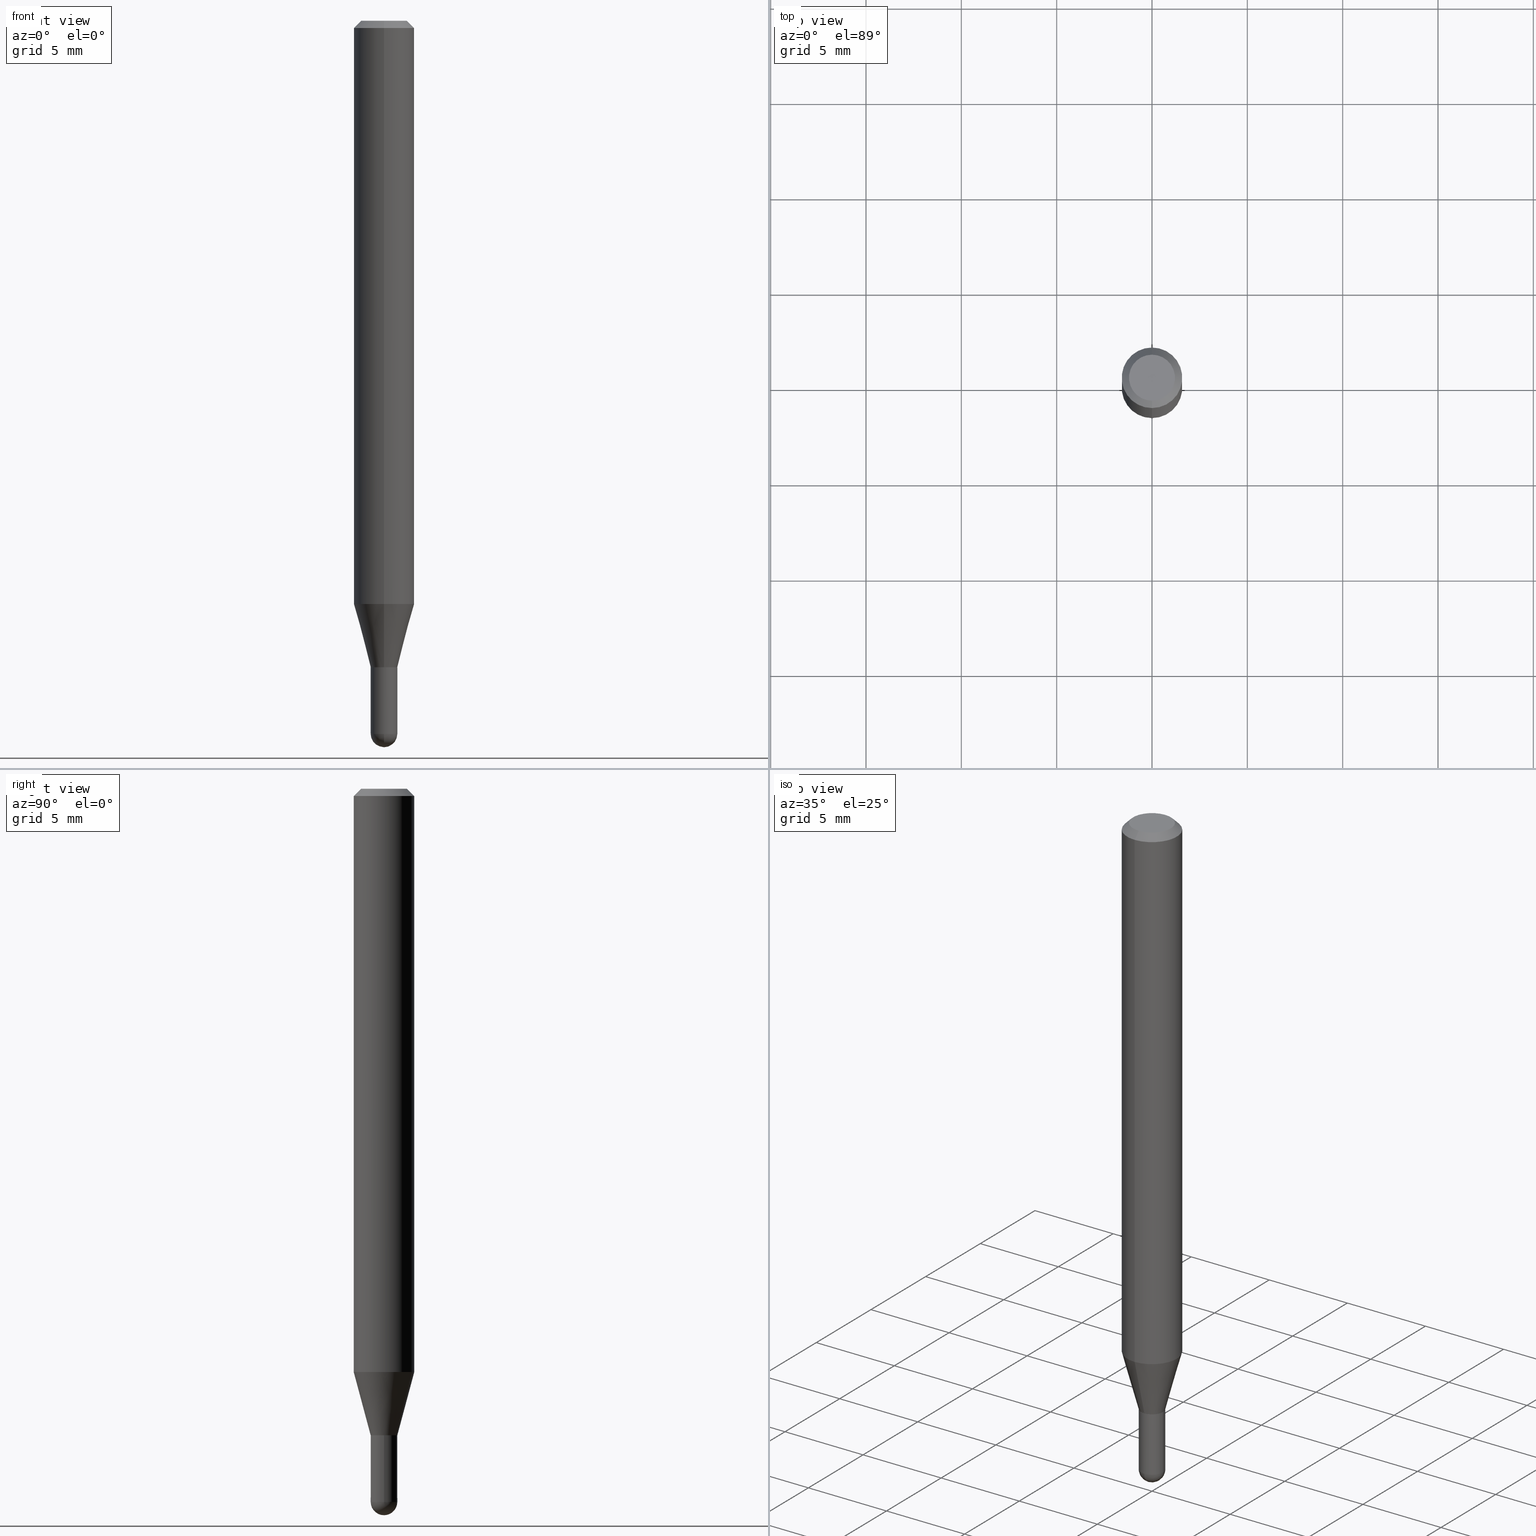
[diagram: canonical four-view strip — front | top / right | iso, engineering-drawing reading convention]
A machine part, canonical four-view strip (front | top / right | iso — engineering-drawing reading convention). The complete STEP part file that produces these views, byte-faithful:
ISO-10303-21;
HEADER;
FILE_DESCRIPTION (( 'STEP AP203' ),
    '1' );
FILE_NAME ('01478.STEP',
    '2024-03-07T21:27:34',
    ( '' ),
    ( '' ),
    'SwSTEP 2.0',
    'SolidWorks 2023',
    '' );
FILE_SCHEMA (( 'CONFIG_CONTROL_DESIGN' ));
ENDSEC;

DATA;
#1 = DIRECTION ( 'NONE',  ( -2.445481383962467149E-29, 3.491463326750125322E-15, 1.000000000000000000 ) ) ;
#2 = ORIENTED_EDGE ( 'NONE', *, *, #430, .F. ) ;
#3 = DIRECTION ( 'NONE',  ( -2.445481383962467429E-29, 3.491463326750125716E-15, 1.000000000000000000 ) ) ;
#4 = ORIENTED_EDGE ( 'NONE', *, *, #189, .T. ) ;
#5 = LOCAL_TIME ( 16, 27, 34.00000000000000000, #88 ) ;
#6 = FACE_OUTER_BOUND ( 'NONE', #467, .T. ) ;
#7 = VERTEX_POINT ( 'NONE', #301 ) ;
#8 = EDGE_CURVE ( 'NONE', #7, #60, #381, .T. ) ;
#9 = DIRECTION ( 'NONE',  ( -2.445481383962467149E-29, 3.491463326750125322E-15, 1.000000000000000000 ) ) ;
#10 = ORIENTED_EDGE ( 'NONE', *, *, #253, .F. ) ;
#11 = DIRECTION ( 'NONE',  ( 0.000000000000000000, 0.000000000000000000, 1.000000000000000000 ) ) ;
#12 = PLANE ( 'NONE',  #295 ) ;
#13 = APPROVAL_PERSON_ORGANIZATION ( #129, #222, #53 ) ;
#14 = DIRECTION ( 'NONE',  ( 1.000000000000000000, 0.000000000000000000, 0.000000000000000000 ) ) ;
#15 = ADVANCED_FACE ( 'NONE', ( #367 ), #12, .F. ) ;
#16 = DIRECTION ( 'NONE',  ( -1.000000000000000000, 6.982962677686265922E-15, -4.876176775795935793E-29 ) ) ;
#17 = PERSON_AND_ORGANIZATION_ROLE ( 'creator' ) ;
#18 = DATE_TIME_ROLE ( 'classification_date' ) ;
#19 = CLOSED_SHELL ( 'NONE', ( #29, #325, #15, #177, #206 ) ) ;
#20 = AXIS2_PLACEMENT_3D ( 'NONE', #505, #384, #418 ) ;
#21 = LOCAL_TIME ( 16, 27, 34.00000000000000000, #443 ) ;
#22 = CARTESIAN_POINT ( 'NONE',  ( 4.440892098500922971E-16, 0.06249999999999995143, -0.01500000000000022669 ) ) ;
#23 = EDGE_CURVE ( 'NONE', #240, #385, #169, .T. ) ;
#24 = CARTESIAN_POINT ( 'NONE',  ( -0.02750000000000000708, 1.953992523340276014E-16, -1.352707149820099356E-30 ) ) ;
#25 = APPROVAL ( #488, 'UNSPECIFIED' ) ;
#26 = FACE_OUTER_BOUND ( 'NONE', #479, .T. ) ;
#27 = CIRCLE ( 'NONE', #303, 0.02750000000000000708 ) ;
#28 = DIRECTION ( 'NONE',  ( -2.445481383962467429E-29, 3.491463326750125716E-15, 1.000000000000000000 ) ) ;
#29 = ADVANCED_FACE ( 'NONE', ( #403 ), #373, .T. ) ;
#30 =( CONVERSION_BASED_UNIT ( 'INCH', #225 ) LENGTH_UNIT ( ) NAMED_UNIT ( #462 ) );
#31 = PLANE ( 'NONE',  #66 ) ;
#32 =( NAMED_UNIT ( * ) SI_UNIT ( $, .STERADIAN. ) SOLID_ANGLE_UNIT ( ) );
#33 = CARTESIAN_POINT ( 'NONE',  ( 1.953992523340595996E-16, 0.02749999999999525740, -1.335000000000000409 ) ) ;
#34 = ORIENTED_EDGE ( 'NONE', *, *, #23, .T. ) ;
#35 = CARTESIAN_POINT ( 'NONE',  ( 2.945284520502991775E-29, -4.205042392724609361E-15, -1.204378221735093346 ) ) ;
#36 = CONICAL_SURFACE ( 'NONE', #20, 0.06250000000000000000, 0.7853981633974483900 ) ;
#37 = AXIS2_PLACEMENT_3D ( 'NONE', #294, #168, #249 ) ;
#38 = DIRECTION ( 'NONE',  ( 1.000000000000000000, -6.982962677686277755E-15, 0.000000000000000000 ) ) ;
#39 = EDGE_LOOP ( 'NONE', ( #41, #324 ) ) ;
#40 = DIRECTION ( 'NONE',  ( -2.445481383962467149E-29, 3.491463326750125322E-15, 1.000000000000000000 ) ) ;
#41 = ORIENTED_EDGE ( 'NONE', *, *, #230, .T. ) ;
#42 = DIRECTION ( 'NONE',  ( 1.000000000000000000, -6.982962677686277755E-15, 0.000000000000000000 ) ) ;
#43 = VERTEX_POINT ( 'NONE', #137 ) ;
#44 = VECTOR ( 'NONE', #287, 39.37007874015748143 ) ;
#45 = AXIS2_PLACEMENT_3D ( 'NONE', #257, #406, #63 ) ;
#46 = CYLINDRICAL_SURFACE ( 'NONE', #493, 0.06250000000000000000 ) ;
#47 = ORIENTED_EDGE ( 'NONE', *, *, #80, .T. ) ;
#48 = CC_DESIGN_PERSON_AND_ORGANIZATION_ASSIGNMENT ( #171, #17, ( #193 ) ) ;
#49 = ORIENTED_EDGE ( 'NONE', *, *, #424, .F. ) ;
#50 = PERSON_AND_ORGANIZATION ( #322, #101 ) ;
#51 = EDGE_CURVE ( 'NONE', #308, #398, #153, .T. ) ;
#52 = AXIS2_PLACEMENT_3D ( 'NONE', #57, #211, #370 ) ;
#53 = APPROVAL_ROLE ( '' ) ;
#54 = APPROVAL_DATE_TIME ( #285, #25 ) ;
#55 = PLANE ( 'NONE',  #269 ) ;
#56 = PERSON_AND_ORGANIZATION_ROLE ( 'classification_officer' ) ;
#57 = CARTESIAN_POINT ( 'NONE',  ( 3.600952817107613706E-29, -5.141206271446532325E-15, -1.472500000000000142 ) ) ;
#58 = EDGE_CURVE ( 'NONE', #111, #398, #27, .T. ) ;
#59 = VECTOR ( 'NONE', #3, 39.37007874015748143 ) ;
#60 = VERTEX_POINT ( 'NONE', #411 ) ;
#61 = DIRECTION ( 'NONE',  ( -6.982962677686266711E-15, -1.000000000000000000, 3.491463326750125716E-15 ) ) ;
#62 = ADVANCED_FACE ( 'NONE', ( #258 ), #55, .F. ) ;
#63 = DIRECTION ( 'NONE',  ( -6.982962677686265922E-15, -1.000000000000000000, 0.000000000000000000 ) ) ;
#64 = FACE_OUTER_BOUND ( 'NONE', #127, .T. ) ;
#65 = ORIENTED_EDGE ( 'NONE', *, *, #414, .T. ) ;
#66 = AXIS2_PLACEMENT_3D ( 'NONE', #465, #383, #103 ) ;
#67 = LOCAL_TIME ( 16, 27, 34.00000000000000000, #218 ) ;
#68 = CYLINDRICAL_SURFACE ( 'NONE', #498, 0.02750000000000000708 ) ;
#69 = DIRECTION ( 'NONE',  ( -6.982962677686265922E-15, -1.000000000000000000, 3.491463326750125322E-15 ) ) ;
#70 = ORIENTED_EDGE ( 'NONE', *, *, #248, .T. ) ;
#71 = LINE ( 'NONE', #358, #59 ) ;
#72 = PRODUCT_DEFINITION ( 'UNKNOWN', '', #193, #470 ) ;
#73 = AXIS2_PLACEMENT_3D ( 'NONE', #311, #108, #302 ) ;
#74 = DIRECTION ( 'NONE',  ( -2.445481383962467149E-29, 3.491463326750125322E-15, 1.000000000000000000 ) ) ;
#75 = VECTOR ( 'NONE', #102, 39.37007874015748854 ) ;
#76 = ORIENTED_EDGE ( 'NONE', *, *, #407, .F. ) ;
#77 = DIRECTION ( 'NONE',  ( 2.445481383962467149E-29, -3.491463326750125322E-15, -1.000000000000000000 ) ) ;
#78 = ORIENTED_EDGE ( 'NONE', *, *, #51, .F. ) ;
#79 = PRODUCT_DEFINITION_SHAPE ( 'NONE', 'NONE',  #72 ) ;
#80 = EDGE_CURVE ( 'NONE', #308, #165, #100, .T. ) ;
#81 = DIRECTION ( 'NONE',  ( -2.445481383962467149E-29, 3.491463326750125322E-15, 1.000000000000000000 ) ) ;
#82 = ORIENTED_EDGE ( 'NONE', *, *, #306, .T. ) ;
#83 = CARTESIAN_POINT ( 'NONE',  ( 0.000000000000000000, 0.000000000000000000, 0.000000000000000000 ) ) ;
#84 = VERTEX_POINT ( 'NONE', #229 ) ;
#85 = AXIS2_PLACEMENT_3D ( 'NONE', #122, #1, #389 ) ;
#86 = ORIENTED_EDGE ( 'NONE', *, *, #360, .F. ) ;
#87 = EDGE_CURVE ( 'NONE', #43, #460, #320, .T. ) ;
#88 = COORDINATED_UNIVERSAL_TIME_OFFSET ( 5, 0, .BEHIND. ) ;
#89 = CC_DESIGN_DATE_AND_TIME_ASSIGNMENT ( #125, #18, ( #246 ) ) ;
#90 = SHAPE_DEFINITION_REPRESENTATION ( #79, #404 ) ;
#91 = DIRECTION ( 'NONE',  ( -6.982962677686265922E-15, -1.000000000000000000, 3.491463326750125322E-15 ) ) ;
#92 = ORIENTED_EDGE ( 'NONE', *, *, #236, .F. ) ;
#93 = CIRCLE ( 'NONE', #185, 0.04749999999999999362 ) ;
#94 = PERSON_AND_ORGANIZATION ( #322, #101 ) ;
#95 = DIRECTION ( 'NONE',  ( -6.982962677686265922E-15, -1.000000000000000000, 3.483106191921935554E-15 ) ) ;
#96 = DIRECTION ( 'NONE',  ( 1.000000000000000000, -6.982962677686277755E-15, 0.000000000000000000 ) ) ;
#97 = MECHANICAL_CONTEXT ( 'NONE', #118, 'mechanical' ) ;
#98 = DIRECTION ( 'NONE',  ( 5.024295867788190974E-15, 0.7071067811865681119, 0.7071067811865270336 ) ) ;
#99 = ADVANCED_FACE ( 'NONE', ( #26 ), #466, .T. ) ;
#100 = CIRCLE ( 'NONE', #304, 0.02750000000000010075 ) ;
#101 = ORGANIZATION ( 'UNSPECIFIED', 'UNSPECIFIED', '' ) ;
#102 = DIRECTION ( 'NONE',  ( 1.839019923739647647E-15, 0.2588190451025316197, 0.9659258262890653146 ) ) ;
#103 = DIRECTION ( 'NONE',  ( -6.982962677686265922E-15, -1.000000000000000000, 3.491463326750125716E-15 ) ) ;
#104 = ORIENTED_EDGE ( 'NONE', *, *, #182, .T. ) ;
#105 = DIRECTION ( 'NONE',  ( -2.445481383962467149E-29, 3.491463326750125322E-15, 1.000000000000000000 ) ) ;
#106 = AXIS2_PLACEMENT_3D ( 'NONE', #305, #344, #69 ) ;
#107 =( NAMED_UNIT ( * ) PLANE_ANGLE_UNIT ( ) SI_UNIT ( $, .RADIAN. ) );
#108 = DIRECTION ( 'NONE',  ( -2.445481383962467149E-29, 3.491463326750125322E-15, 1.000000000000000000 ) ) ;
#109 = DIRECTION ( 'NONE',  ( -2.445481383962467149E-29, 3.491463326750125322E-15, 1.000000000000000000 ) ) ;
#110 = CARTESIAN_POINT ( 'NONE',  ( 0.02750000000000000708, -1.920314736363723691E-16, 1.340948613343882588E-30 ) ) ;
#111 = VERTEX_POINT ( 'NONE', #500 ) ;
#112 = VECTOR ( 'NONE', #419, 39.37007874015748143 ) ;
#113 = CARTESIAN_POINT ( 'NONE',  ( -1.885399922974965256E-16, -0.02700000000000466263, -1.335000000000000187 ) ) ;
#114 = CIRCLE ( 'NONE', #186, 0.06250000000000000000 ) ;
#115 = ORIENTED_EDGE ( 'NONE', *, *, #230, .F. ) ;
#116 = ADVANCED_FACE ( 'NONE', ( #144 ), #455, .T. ) ;
#117 = CARTESIAN_POINT ( 'NONE',  ( 3.668222075943703298E-31, -5.237194990125190917E-17, -0.01500000000000000812 ) ) ;
#118 = APPLICATION_CONTEXT ( 'configuration controlled 3d designs of mechanical parts and assemblies' ) ;
#119 = ORIENTED_EDGE ( 'NONE', *, *, #253, .T. ) ;
#120 = CARTESIAN_POINT ( 'NONE',  ( 3.600952817107613706E-29, -5.141206271446532325E-15, -1.472500000000000142 ) ) ;
#121 = ORIENTED_EDGE ( 'NONE', *, *, #58, .T. ) ;
#122 = CARTESIAN_POINT ( 'NONE',  ( 3.264717647589894801E-29, -4.661103541211418295E-15, -1.335000000000000409 ) ) ;
#123 = EDGE_LOOP ( 'NONE', ( #181, #428, #463, #359 ) ) ;
#124 = AXIS2_PLACEMENT_3D ( 'NONE', #176, #334, #292 ) ;
#125 = DATE_AND_TIME ( #405, #67 ) ;
#126 = DIRECTION ( 'NONE',  ( -1.807323732225377077E-15, -0.2588190451025249028, 0.9659258262890670910 ) ) ;
#127 = EDGE_LOOP ( 'NONE', ( #78, #47, #434, #92 ) ) ;
#128 = ADVANCED_FACE ( 'NONE', ( #504 ), #31, .F. ) ;
#129 = PERSON_AND_ORGANIZATION ( #322, #101 ) ;
#130 = CARTESIAN_POINT ( 'NONE',  ( 0.000000000000000000, 0.000000000000000000, 0.000000000000000000 ) ) ;
#131 = ORIENTED_EDGE ( 'NONE', *, *, #300, .T. ) ;
#132 = CALENDAR_DATE ( 2024, 7, 3 ) ;
#133 = CARTESIAN_POINT ( 'NONE',  ( 1.920314736364049589E-16, 0.02749999999999534067, -1.335000000000000187 ) ) ;
#134 = CIRCLE ( 'NONE', #437, 0.06250000000000000000 ) ;
#135 = LOCAL_TIME ( 16, 27, 34.00000000000000000, #450 ) ;
#136 = EDGE_CURVE ( 'NONE', #151, #385, #456, .T. ) ;
#137 = CARTESIAN_POINT ( 'NONE',  ( -3.773273898774340269E-16, -0.04749999999999999362, 1.569833328543813949E-16 ) ) ;
#138 = LINE ( 'NONE', #442, #202 ) ;
#139 = VERTEX_POINT ( 'NONE', #184 ) ;
#140 = DIRECTION ( 'NONE',  ( -2.445481383962467149E-29, 3.491463326750125322E-15, 1.000000000000000000 ) ) ;
#141 = ADVANCED_FACE ( 'NONE', ( #379 ), #190, .F. ) ;
#142 = VECTOR ( 'NONE', #232, 39.37007874015748143 ) ;
#143 = CC_DESIGN_APPROVAL ( #25, ( #246 ) ) ;
#144 = FACE_OUTER_BOUND ( 'NONE', #436, .T. ) ;
#145 = CC_DESIGN_PERSON_AND_ORGANIZATION_ASSIGNMENT ( #335, #163, ( #193 ) ) ;
#146 = ORIENTED_EDGE ( 'NONE', *, *, #80, .F. ) ;
#147 = CARTESIAN_POINT ( 'NONE',  ( 3.264700856257157760E-29, -4.661127587355599122E-15, -1.335000000000000187 ) ) ;
#148 = FACE_OUTER_BOUND ( 'NONE', #329, .T. ) ;
#149 = ORIENTED_EDGE ( 'NONE', *, *, #152, .T. ) ;
#150 = CARTESIAN_POINT ( 'NONE',  ( 0.000000000000000000, 0.000000000000000000, 0.000000000000000000 ) ) ;
#151 = VERTEX_POINT ( 'NONE', #266 ) ;
#152 = EDGE_CURVE ( 'NONE', #84, #319, #497, .T. ) ;
#153 = CIRCLE ( 'NONE', #339, 0.02750000000000010075 ) ;
#154 = DIRECTION ( 'NONE',  ( -2.445468806185136597E-29, 3.491481338843145583E-15, 1.000000000000000000 ) ) ;
#155 = CYLINDRICAL_SURFACE ( 'NONE', #420, 0.06250000000000000000 ) ;
#156 = ORIENTED_EDGE ( 'NONE', *, *, #481, .T. ) ;
#157 = CARTESIAN_POINT ( 'NONE',  ( 3.598601109812370247E-29, -5.144574050144187163E-15, -1.472500000000000142 ) ) ;
#158 = ORIENTED_EDGE ( 'NONE', *, *, #293, .F. ) ;
#159 = DIRECTION ( 'NONE',  ( 6.982962677686265922E-15, 1.000000000000000000, -3.483106191921935554E-15 ) ) ;
#160 = ORIENTED_EDGE ( 'NONE', *, *, #215, .T. ) ;
#161 = LINE ( 'NONE', #387, #369 ) ;
#162 = ORIENTED_EDGE ( 'NONE', *, *, #23, .F. ) ;
#163 = PERSON_AND_ORGANIZATION_ROLE ( 'design_supplier' ) ;
#164 = LINE ( 'NONE', #235, #275 ) ;
#165 = VERTEX_POINT ( 'NONE', #343 ) ;
#166 = APPROVAL_STATUS ( 'not_yet_approved' ) ;
#167 = ADVANCED_FACE ( 'NONE', ( #307 ), #36, .T. ) ;
#168 = DIRECTION ( 'NONE',  ( -2.445468806185136597E-29, 3.491481338843145583E-15, 1.000000000000000000 ) ) ;
#169 = LINE ( 'NONE', #179, #354 ) ;
#170 = CIRCLE ( 'NONE', #457, 0.02750000000000000708 ) ;
#171 = PERSON_AND_ORGANIZATION ( #322, #101 ) ;
#172 = CARTESIAN_POINT ( 'NONE',  ( 3.264717647589894801E-29, -4.661103541211418295E-15, -1.335000000000000409 ) ) ;
#173 = ORIENTED_EDGE ( 'NONE', *, *, #509, .F. ) ;
#174 = CALENDAR_DATE ( 2024, 7, 3 ) ;
#175 = CARTESIAN_POINT ( 'NONE',  ( -4.364351673553912750E-16, -0.06250000000000005551, -0.01499999999999979128 ) ) ;
#176 = CARTESIAN_POINT ( 'NONE',  ( 0.000000000000000000, 0.000000000000000000, 0.000000000000000000 ) ) ;
#177 = ADVANCED_FACE ( 'NONE', ( #64 ), #380, .T. ) ;
#178 = APPLICATION_CONTEXT ( 'configuration controlled 3d designs of mechanical parts and assemblies' ) ;
#179 = CARTESIAN_POINT ( 'NONE',  ( -1.885399922974965256E-16, -0.02700000000000466263, -1.335000000000000187 ) ) ;
#180 = AXIS2_PLACEMENT_3D ( 'NONE', #117, #81, #469 ) ;
#181 = ORIENTED_EDGE ( 'NONE', *, *, #87, .F. ) ;
#182 = EDGE_CURVE ( 'NONE', #460, #417, #187, .T. ) ;
#183 = DIRECTION ( 'NONE',  ( -6.982962677686266711E-15, -1.000000000000000000, 3.491463326750125716E-15 ) ) ;
#184 = CARTESIAN_POINT ( 'NONE',  ( 1.936228954946596434E-16, 0.02699999999999533676, -1.335000000000000187 ) ) ;
#185 = AXIS2_PLACEMENT_3D ( 'NONE', #265, #140, #61 ) ;
#186 = AXIS2_PLACEMENT_3D ( 'NONE', #291, #438, #95 ) ;
#187 = LINE ( 'NONE', #378, #112 ) ;
#188 = CARTESIAN_POINT ( 'NONE',  ( 3.264717647589894241E-29, -4.661103541211417506E-15, -1.335000000000000187 ) ) ;
#189 = EDGE_CURVE ( 'NONE', #317, #7, #351, .T. ) ;
#190 = CYLINDRICAL_SURFACE ( 'NONE', #106, 0.02749999999999992034 ) ;
#191 = ORIENTED_EDGE ( 'NONE', *, *, #136, .F. ) ;
#192 = CIRCLE ( 'NONE', #506, 0.02699999999999999969 ) ;
#193 = PRODUCT_DEFINITION_FORMATION_WITH_SPECIFIED_SOURCE ( 'ANY', '', #352, .NOT_KNOWN. ) ;
#194 = DIRECTION ( 'NONE',  ( -6.982962677686265922E-15, -1.000000000000000000, 3.491463326750125322E-15 ) ) ;
#195 = ADVANCED_FACE ( 'NONE', ( #148 ), #361, .T. ) ;
#196 = CARTESIAN_POINT ( 'NONE',  ( 0.02750000000000000014, -4.853159060991972403E-15, -1.335000000000000187 ) ) ;
#197 = ORIENTED_EDGE ( 'NONE', *, *, #248, .F. ) ;
#198 = CARTESIAN_POINT ( 'NONE',  ( 1.953992523340589093E-16, 0.02749999999999517067, -1.334500000000000242 ) ) ;
#199 = ORIENTED_EDGE ( 'NONE', *, *, #341, .F. ) ;
#200 = AXIS2_PLACEMENT_3D ( 'NONE', #427, #74, #355 ) ;
#201 = CARTESIAN_POINT ( 'NONE',  ( 1.953992523340638644E-16, 0.02749999999999491046, -1.472500000000000142 ) ) ;
#202 = VECTOR ( 'NONE', #98, 39.37007874015748143 ) ;
#203 = ORIENTED_EDGE ( 'NONE', *, *, #189, .F. ) ;
#204 = DIRECTION ( 'NONE',  ( -2.445481383962467149E-29, 3.491463326750125322E-15, 1.000000000000000000 ) ) ;
#205 = ORIENTED_EDGE ( 'NONE', *, *, #464, .F. ) ;
#206 = ADVANCED_FACE ( 'NONE', ( #268 ), #68, .T. ) ;
#207 = ORIENTED_EDGE ( 'NONE', *, *, #464, .T. ) ;
#208 = PERSON_AND_ORGANIZATION ( #322, #101 ) ;
#209 = UNCERTAINTY_MEASURE_WITH_UNIT (LENGTH_MEASURE( 1.000000000000000082E-05 ), #30, 'distance_accuracy_value', 'NONE');
#210 = CLOSED_SHELL ( 'NONE', ( #472, #503, #167, #267, #116, #99, #262, #345, #62, #128, #195, #141 ) ) ;
#211 = DIRECTION ( 'NONE',  ( -2.445468806185136597E-29, 3.491481338843145583E-15, 1.000000000000000000 ) ) ;
#212 = AXIS2_PLACEMENT_3D ( 'NONE', #120, #280, #38 ) ;
#213 = VECTOR ( 'NONE', #363, 39.37007874015748143 ) ;
#214 = APPROVAL_ROLE ( '' ) ;
#215 = EDGE_CURVE ( 'NONE', #240, #139, #192, .T. ) ;
#216 = CALENDAR_DATE ( 2024, 7, 3 ) ;
#217 = DIRECTION ( 'NONE',  ( 2.445481383962466869E-29, -3.491463326750125716E-15, -1.000000000000000000 ) ) ;
#218 = COORDINATED_UNIVERSAL_TIME_OFFSET ( 5, 0, .BEHIND. ) ;
#219 = CIRCLE ( 'NONE', #200, 0.02749999999999992381 ) ;
#220 = CIRCLE ( 'NONE', #180, 0.06250000000000000000 ) ;
#221 = DIRECTION ( 'NONE',  ( -6.982962677686265133E-15, -1.000000000000000000, 0.000000000000000000 ) ) ;
#222 = APPROVAL ( #480, 'UNSPECIFIED' ) ;
#223 = DIRECTION ( 'NONE',  ( -2.445481383962467149E-29, 3.491463326750125322E-15, 1.000000000000000000 ) ) ;
#224 = CARTESIAN_POINT ( 'NONE',  ( 2.166983890909381177E-46, -3.093846812486927280E-32, -8.861175166249556277E-18 ) ) ;
#225 = LENGTH_MEASURE_WITH_UNIT ( LENGTH_MEASURE( 0.02539999999999999897 ), #261 );
#226 = ORIENTED_EDGE ( 'NONE', *, *, #360, .T. ) ;
#227 = CIRCLE ( 'NONE', #212, 0.02750000000000000708 ) ;
#228 = APPROVAL_PERSON_ORGANIZATION ( #50, #496, #290 ) ;
#229 = CARTESIAN_POINT ( 'NONE',  ( -0.02750000000000000708, -4.705767677067038393E-15, -1.472500000000000142 ) ) ;
#230 = EDGE_CURVE ( 'NONE', #460, #43, #93, .T. ) ;
#231 = ORIENTED_EDGE ( 'NONE', *, *, #282, .T. ) ;
#232 = DIRECTION ( 'NONE',  ( -2.445468806185136877E-29, 3.491481338843145188E-15, 1.000000000000000000 ) ) ;
#233 = PRODUCT_RELATED_PRODUCT_CATEGORY ( 'detail', '', ( #352 ) ) ;
#234 = EDGE_LOOP ( 'NONE', ( #197, #474, #254, #231 ) ) ;
#235 = CARTESIAN_POINT ( 'NONE',  ( 1.953992523340269605E-16, 0.02749999999999992034, -9.601524148562816631E-17 ) ) ;
#236 = EDGE_CURVE ( 'NONE', #398, #84, #227, .T. ) ;
#237 = AXIS2_PLACEMENT_3D ( 'NONE', #461, #348, #501 ) ;
#238 = LOCAL_TIME ( 16, 27, 34.00000000000000000, #372 ) ;
#239 = LINE ( 'NONE', #110, #44 ) ;
#240 = VERTEX_POINT ( 'NONE', #113 ) ;
#241 = FACE_OUTER_BOUND ( 'NONE', #392, .T. ) ;
#242 = ORIENTED_EDGE ( 'NONE', *, *, #300, .F. ) ;
#243 = DIRECTION ( 'NONE',  ( -2.445468806185136597E-29, 3.491481338843145583E-15, 1.000000000000000000 ) ) ;
#244 = ORIENTED_EDGE ( 'NONE', *, *, #333, .T. ) ;
#245 = AXIS2_PLACEMENT_3D ( 'NONE', #365, #9, #482 ) ;
#246 = SECURITY_CLASSIFICATION ( '', '', #338 ) ;
#247 = VERTEX_POINT ( 'NONE', #196 ) ;
#248 = EDGE_CURVE ( 'NONE', #317, #279, #164, .T. ) ;
#249 = DIRECTION ( 'NONE',  ( 1.000000000000000000, -6.982962677686279332E-15, 0.000000000000000000 ) ) ;
#250 = ORIENTED_EDGE ( 'NONE', *, *, #424, .T. ) ;
#251 = CARTESIAN_POINT ( 'NONE',  ( 3.840629472727447874E-16, 0.04749999999999999362, -1.747056831868805136E-16 ) ) ;
#252 = DIRECTION ( 'NONE',  ( 1.000000000000000000, -7.105427357601001070E-15, 4.926315508542082329E-29 ) ) ;
#253 = EDGE_CURVE ( 'NONE', #60, #7, #134, .T. ) ;
#254 = ORIENTED_EDGE ( 'NONE', *, *, #136, .T. ) ;
#255 = CONICAL_SURFACE ( 'NONE', #321, 0.02699999999999999969, 0.7853981633974739252 ) ;
#256 = DATE_AND_TIME ( #441, #238 ) ;
#257 = CARTESIAN_POINT ( 'NONE',  ( 3.263494906897912380E-29, -4.659357809548043093E-15, -1.334500000000000242 ) ) ;
#258 = FACE_OUTER_BOUND ( 'NONE', #39, .T. ) ;
#259 = APPROVAL_DATE_TIME ( #298, #222 ) ;
#260 = DIRECTION ( 'NONE',  ( -1.000000000000000000, 6.982962677686265922E-15, -4.883557194083112340E-29 ) ) ;
#261 =( LENGTH_UNIT ( ) NAMED_UNIT ( * ) SI_UNIT ( $, .METRE. ) );
#262 = ADVANCED_FACE ( 'NONE', ( #241 ), #155, .T. ) ;
#263 = VECTOR ( 'NONE', #28, 39.37007874015748143 ) ;
#264 = CIRCLE ( 'NONE', #52, 0.02750000000000000708 ) ;
#265 = CARTESIAN_POINT ( 'NONE',  ( 2.166983890909381177E-46, -3.093846812486927280E-32, -8.861175166249556277E-18 ) ) ;
#266 = CARTESIAN_POINT ( 'NONE',  ( -1.920314736363391136E-16, -0.02750000000000457981, -1.335000000000000409 ) ) ;
#267 = ADVANCED_FACE ( 'NONE', ( #356 ), #46, .T. ) ;
#268 = FACE_OUTER_BOUND ( 'NONE', #353, .T. ) ;
#269 = AXIS2_PLACEMENT_3D ( 'NONE', #340, #217, #494 ) ;
#270 = DIRECTION ( 'NONE',  ( 1.000000000000000000, -6.982962677686279332E-15, 0.000000000000000000 ) ) ;
#271 = CARTESIAN_POINT ( 'NONE',  ( -1.920314736363717528E-16, -0.02749999999999992034, 9.601524148562816631E-17 ) ) ;
#272 = CARTESIAN_POINT ( 'NONE',  ( 3.264717647589894241E-29, -4.661103541211417506E-15, -1.335000000000000187 ) ) ;
#273 = CARTESIAN_POINT ( 'NONE',  ( 3.600952817107613706E-29, -5.141206271446532325E-15, -1.472500000000000142 ) ) ;
#274 = ORIENTED_EDGE ( 'NONE', *, *, #51, .T. ) ;
#275 = VECTOR ( 'NONE', #478, 39.37007874015748143 ) ;
#276 = CIRCLE ( 'NONE', #347, 0.02749999999999992034 ) ;
#277 = MANIFOLD_SOLID_BREP ( 'Body-Move/Copy2[2]', #210 ) ;
#278 = DIRECTION ( 'NONE',  ( -6.982962677686265922E-15, -1.000000000000000000, 0.000000000000000000 ) ) ;
#279 = VERTEX_POINT ( 'NONE', #198 ) ;
#280 = DIRECTION ( 'NONE',  ( -2.445468806185136597E-29, 3.491481338843145583E-15, 1.000000000000000000 ) ) ;
#281 = EDGE_LOOP ( 'NONE', ( #394, #70, #156, #191 ) ) ;
#282 = EDGE_CURVE ( 'NONE', #385, #279, #219, .T. ) ;
#283 = CARTESIAN_POINT ( 'NONE',  ( 3.197442310920758867E-16, 0.02749999999999525740, -1.335000000000000409 ) ) ;
#284 = ORIENTED_EDGE ( 'NONE', *, *, #407, .T. ) ;
#285 = DATE_AND_TIME ( #132, #135 ) ;
#286 = AXIS2_PLACEMENT_3D ( 'NONE', #468, #423, #350 ) ;
#287 = DIRECTION ( 'NONE',  ( -2.445468806185136877E-29, 3.491481338843145188E-15, 1.000000000000000000 ) ) ;
#288 = VECTOR ( 'NONE', #126, 39.37007874015748143 ) ;
#289 = ORIENTED_EDGE ( 'NONE', *, *, #375, .F. ) ;
#290 = APPROVAL_ROLE ( '' ) ;
#291 = CARTESIAN_POINT ( 'NONE',  ( 3.668222075943703298E-31, -5.237194990125190917E-17, -0.01500000000000000812 ) ) ;
#292 = DIRECTION ( 'NONE',  ( 1.000000000000000000, -6.982962677686265922E-15, 4.876176775795935232E-29 ) ) ;
#293 = EDGE_CURVE ( 'NONE', #111, #247, #239, .T. ) ;
#294 = CARTESIAN_POINT ( 'NONE',  ( 3.264700856257157760E-29, -4.661127587355599122E-15, -1.335000000000000187 ) ) ;
#295 = AXIS2_PLACEMENT_3D ( 'NONE', #133, #452, #16 ) ;
#296 = DIRECTION ( 'NONE',  ( 7.105427357601000281E-15, 1.000000000000000000, 0.000000000000000000 ) ) ;
#297 = CC_DESIGN_APPROVAL ( #222, ( #193 ) ) ;
#298 = DATE_AND_TIME ( #174, #21 ) ;
#299 = CARTESIAN_POINT ( 'NONE',  ( 3.598601109812370247E-29, -5.144574050144187163E-15, -1.472500000000000142 ) ) ;
#300 = EDGE_CURVE ( 'NONE', #139, #240, #395, .T. ) ;
#301 = CARTESIAN_POINT ( 'NONE',  ( 4.440892098500917054E-16, 0.06249999999999575340, -1.204378221735093790 ) ) ;
#302 = DIRECTION ( 'NONE',  ( -6.982962677686265922E-15, -1.000000000000000000, 0.000000000000000000 ) ) ;
#303 = AXIS2_PLACEMENT_3D ( 'NONE', #449, #401, #96 ) ;
#304 = AXIS2_PLACEMENT_3D ( 'NONE', #299, #260, #459 ) ;
#305 = CARTESIAN_POINT ( 'NONE',  ( 0.000000000000000000, 0.000000000000000000, 0.000000000000000000 ) ) ;
#306 = EDGE_CURVE ( 'NONE', #151, #317, #313, .T. ) ;
#307 = FACE_OUTER_BOUND ( 'NONE', #123, .T. ) ;
#308 = VERTEX_POINT ( 'NONE', #510 ) ;
#309 = CC_DESIGN_PERSON_AND_ORGANIZATION_ASSIGNMENT ( #94, #56, ( #246 ) ) ;
#310 = FACE_OUTER_BOUND ( 'NONE', #357, .T. ) ;
#311 = CARTESIAN_POINT ( 'NONE',  ( 3.264717647589894801E-29, -4.661103541211418295E-15, -1.335000000000000409 ) ) ;
#312 = ORIENTED_EDGE ( 'NONE', *, *, #447, .F. ) ;
#313 = CIRCLE ( 'NONE', #85, 0.02749999999999992034 ) ;
#314 = DIRECTION ( 'NONE',  ( 1.000000000000000000, -6.982962677686265922E-15, 4.876176775795935232E-29 ) ) ;
#315 = CARTESIAN_POINT ( 'NONE',  ( -4.364351673553916201E-16, -0.06250000000000000000, 2.182164579218828326E-16 ) ) ;
#316 = CC_DESIGN_DATE_AND_TIME_ASSIGNMENT ( #256, #446, ( #72 ) ) ;
#317 = VERTEX_POINT ( 'NONE', #283 ) ;
#318 = DIRECTION ( 'NONE',  ( -2.445481383962467149E-29, 3.491463326750125322E-15, 1.000000000000000000 ) ) ;
#319 = VERTEX_POINT ( 'NONE', #435 ) ;
#320 = CIRCLE ( 'NONE', #412, 0.04749999999999999362 ) ;
#321 = AXIS2_PLACEMENT_3D ( 'NONE', #415, #223, #453 ) ;
#322 = PERSON ( 'UNSPECIFIED', 'UNSPECIFIED', 'UNSPECIFIED', ('UNSPECIFIED'), ('UNSPECIFIED'), ('UNSPECIFIED') ) ;
#323 = SPHERICAL_SURFACE ( 'NONE', #376, 0.02750000000000010075 ) ;
#324 = ORIENTED_EDGE ( 'NONE', *, *, #87, .T. ) ;
#325 = ADVANCED_FACE ( 'NONE', ( #433 ), #323, .T. ) ;
#326 = CARTESIAN_POINT ( 'NONE',  ( -1.920314736363398285E-16, -0.02750000000000468042, -1.334500000000000242 ) ) ;
#327 = ORIENTED_EDGE ( 'NONE', *, *, #447, .T. ) ;
#328 = DIRECTION ( 'NONE',  ( -6.982962677686265922E-15, -1.000000000000000000, 3.491463326750125322E-15 ) ) ;
#329 = EDGE_LOOP ( 'NONE', ( #2, #131, #34, #502 ) ) ;
#330 = APPROVAL_DATE_TIME ( #374, #496 ) ;
#331 = LINE ( 'NONE', #486, #288 ) ;
#332 = CC_DESIGN_APPROVAL ( #496, ( #72 ) ) ;
#333 = EDGE_CURVE ( 'NONE', #7, #417, #71, .T. ) ;
#334 = DIRECTION ( 'NONE',  ( -2.445468806185136597E-29, 3.491481338843145583E-15, 1.000000000000000000 ) ) ;
#335 = PERSON_AND_ORGANIZATION ( #322, #101 ) ;
#336 = CYLINDRICAL_SURFACE ( 'NONE', #402, 0.02749999999999992034 ) ;
#337 = DIRECTION ( 'NONE',  ( -2.445481383962467149E-29, 3.491463326750125322E-15, 1.000000000000000000 ) ) ;
#338 = SECURITY_CLASSIFICATION_LEVEL ( 'unclassified' ) ;
#339 = AXIS2_PLACEMENT_3D ( 'NONE', #408, #252, #296 ) ;
#340 = CARTESIAN_POINT ( 'NONE',  ( 3.316907271900976096E-16, 0.04749999999999999362, -1.702750956037557278E-16 ) ) ;
#341 = EDGE_CURVE ( 'NONE', #43, #422, #161, .T. ) ;
#342 = ORIENTED_EDGE ( 'NONE', *, *, #236, .T. ) ;
#343 = CARTESIAN_POINT ( 'NONE',  ( -1.920314736363366977E-16, -0.02750000000000519737, -1.472500000000000142 ) ) ;
#344 = DIRECTION ( 'NONE',  ( -2.445481383962467149E-29, 3.491463326750125322E-15, 1.000000000000000000 ) ) ;
#345 = ADVANCED_FACE ( 'NONE', ( #6 ), #507, .T. ) ;
#346 = AXIS2_PLACEMENT_3D ( 'NONE', #371, #337, #454 ) ;
#347 = AXIS2_PLACEMENT_3D ( 'NONE', #172, #410, #451 ) ;
#348 = DIRECTION ( 'NONE',  ( 1.000000000000000000, -6.982962677686265922E-15, 4.883557194083112901E-29 ) ) ;
#349 = ORIENTED_EDGE ( 'NONE', *, *, #152, .F. ) ;
#350 = DIRECTION ( 'NONE',  ( -6.982962677686265922E-15, -1.000000000000000000, 0.000000000000000000 ) ) ;
#351 = LINE ( 'NONE', #33, #75 ) ;
#352 = PRODUCT ( '01478', '01478', '', ( #97 ) ) ;
#353 = EDGE_LOOP ( 'NONE', ( #349, #471, #250, #364, #76 ) ) ;
#354 = VECTOR ( 'NONE', #445, 39.37007874015748143 ) ;
#355 = DIRECTION ( 'NONE',  ( -6.982962677686265922E-15, -1.000000000000000000, 0.000000000000000000 ) ) ;
#356 = FACE_OUTER_BOUND ( 'NONE', #487, .T. ) ;
#357 = EDGE_LOOP ( 'NONE', ( #160, #508, #397, #162 ) ) ;
#358 = CARTESIAN_POINT ( 'NONE',  ( 4.440892098500625669E-16, 0.06250000000000000000, -2.182164579218828326E-16 ) ) ;
#359 = ORIENTED_EDGE ( 'NONE', *, *, #182, .F. ) ;
#360 = EDGE_CURVE ( 'NONE', #60, #422, #476, .T. ) ;
#361 = CONICAL_SURFACE ( 'NONE', #448, 0.02699999999999999969, 0.7853981633974739252 ) ;
#362 = APPROVAL_PERSON_ORGANIZATION ( #491, #25, #214 ) ;
#363 = DIRECTION ( 'NONE',  ( -2.445481383962467429E-29, 3.491463326750125716E-15, 1.000000000000000000 ) ) ;
#364 = ORIENTED_EDGE ( 'NONE', *, *, #293, .T. ) ;
#365 = CARTESIAN_POINT ( 'NONE',  ( 3.264717647589894241E-29, -4.661103541211417506E-15, -1.335000000000000187 ) ) ;
#366 = EDGE_LOOP ( 'NONE', ( #477, #284 ) ) ;
#367 = FACE_OUTER_BOUND ( 'NONE', #366, .T. ) ;
#368 = PERSON_AND_ORGANIZATION ( #322, #101 ) ;
#369 = VECTOR ( 'NONE', #431, 39.37007874015748143 ) ;
#370 = DIRECTION ( 'NONE',  ( 1.000000000000000000, -6.982962677686277755E-15, 0.000000000000000000 ) ) ;
#371 = CARTESIAN_POINT ( 'NONE',  ( 2.945284520502991775E-29, -4.205042392724609361E-15, -1.204378221735093346 ) ) ;
#372 = COORDINATED_UNIVERSAL_TIME_OFFSET ( 5, 0, .BEHIND. ) ;
#373 = CYLINDRICAL_SURFACE ( 'NONE', #124, 0.02750000000000000708 ) ;
#374 = DATE_AND_TIME ( #216, #5 ) ;
#375 = EDGE_CURVE ( 'NONE', #422, #417, #220, .T. ) ;
#376 = AXIS2_PLACEMENT_3D ( 'NONE', #157, #473, #278 ) ;
#377 = MANIFOLD_SOLID_BREP ( 'Body-Move/Copy2[1]', #19 ) ;
#378 = CARTESIAN_POINT ( 'NONE',  ( 4.364351673553919652E-16, 0.06249999999999995143, -0.01500000000000022669 ) ) ;
#379 = FACE_OUTER_BOUND ( 'NONE', #234, .T. ) ;
#380 = SPHERICAL_SURFACE ( 'NONE', #237, 0.02750000000000010075 ) ;
#381 = CIRCLE ( 'NONE', #346, 0.06250000000000000000 ) ;
#382 =( GEOMETRIC_REPRESENTATION_CONTEXT ( 3 ) GLOBAL_UNCERTAINTY_ASSIGNED_CONTEXT ( ( #209 ) ) GLOBAL_UNIT_ASSIGNED_CONTEXT ( ( #30, #107, #32 ) ) REPRESENTATION_CONTEXT ( 'NONE', 'WORKASPACE' ) );
#383 = DIRECTION ( 'NONE',  ( -2.445481383962466869E-29, 3.491463326750125716E-15, 1.000000000000000000 ) ) ;
#384 = DIRECTION ( 'NONE',  ( 2.445481383962467149E-29, -3.491463326750125322E-15, -1.000000000000000000 ) ) ;
#385 = VERTEX_POINT ( 'NONE', #326 ) ;
#386 = EDGE_CURVE ( 'NONE', #84, #165, #170, .T. ) ;
#387 = CARTESIAN_POINT ( 'NONE',  ( -4.287811248607203282E-16, -0.06250000000000005551, -0.01499999999999979128 ) ) ;
#388 = AXIS2_PLACEMENT_3D ( 'NONE', #147, #458, #270 ) ;
#389 = DIRECTION ( 'NONE',  ( -6.982962677686265922E-15, -1.000000000000000000, 0.000000000000000000 ) ) ;
#390 = ORIENTED_EDGE ( 'NONE', *, *, #8, .F. ) ;
#391 = CARTESIAN_POINT ( 'NONE',  ( 0.000000000000000000, 0.000000000000000000, 0.000000000000000000 ) ) ;
#392 = EDGE_LOOP ( 'NONE', ( #511, #432, #226, #205 ) ) ;
#393 = CARTESIAN_POINT ( 'NONE',  ( 3.668222075943703298E-31, -5.237194990125190917E-17, -0.01500000000000000812 ) ) ;
#394 = ORIENTED_EDGE ( 'NONE', *, *, #414, .F. ) ;
#395 = CIRCLE ( 'NONE', #245, 0.02699999999999999969 ) ;
#396 = DIRECTION ( 'NONE',  ( -6.982962677686265922E-15, -1.000000000000000000, 4.370956789862821150E-15 ) ) ;
#397 = ORIENTED_EDGE ( 'NONE', *, *, #282, .F. ) ;
#398 = VERTEX_POINT ( 'NONE', #201 ) ;
#399 = CC_DESIGN_PERSON_AND_ORGANIZATION_ASSIGNMENT ( #368, #485, ( #72 ) ) ;
#400 = CARTESIAN_POINT ( 'NONE',  ( 0.000000000000000000, 0.000000000000000000, 0.000000000000000000 ) ) ;
#401 = DIRECTION ( 'NONE',  ( -2.445468806185136597E-29, 3.491481338843145583E-15, 1.000000000000000000 ) ) ;
#402 = AXIS2_PLACEMENT_3D ( 'NONE', #130, #444, #91 ) ;
#403 = FACE_OUTER_BOUND ( 'NONE', #439, .T. ) ;
#404 = ADVANCED_BREP_SHAPE_REPRESENTATION ( '01478', ( #377, #277, #413 ), #382 ) ;
#405 = CALENDAR_DATE ( 2024, 7, 3 ) ;
#406 = DIRECTION ( 'NONE',  ( -2.445481383962467149E-29, 3.491463326750125322E-15, 1.000000000000000000 ) ) ;
#407 = EDGE_CURVE ( 'NONE', #319, #247, #429, .T. ) ;
#408 = CARTESIAN_POINT ( 'NONE',  ( 3.598601109812370247E-29, -5.144574050144187163E-15, -1.472500000000000142 ) ) ;
#409 = APPLICATION_PROTOCOL_DEFINITION ( 'international standard', 'config_control_design', 1994, #178 ) ;
#410 = DIRECTION ( 'NONE',  ( -2.445481383962467149E-29, 3.491463326750125322E-15, 1.000000000000000000 ) ) ;
#411 = CARTESIAN_POINT ( 'NONE',  ( -4.364351673553623336E-16, -0.06250000000000421885, -1.204378221735093124 ) ) ;
#412 = AXIS2_PLACEMENT_3D ( 'NONE', #224, #109, #183 ) ;
#413 = AXIS2_PLACEMENT_3D ( 'NONE', #400, #11, #14 ) ;
#414 = EDGE_CURVE ( 'NONE', #317, #151, #276, .T. ) ;
#415 = CARTESIAN_POINT ( 'NONE',  ( 3.264717647589894241E-29, -4.661103541211417506E-15, -1.335000000000000187 ) ) ;
#416 = DIRECTION ( 'NONE',  ( -6.982962677686265133E-15, -1.000000000000000000, 0.000000000000000000 ) ) ;
#417 = VERTEX_POINT ( 'NONE', #22 ) ;
#418 = DIRECTION ( 'NONE',  ( 6.982962677686265922E-15, 1.000000000000000000, -3.483106191921935554E-15 ) ) ;
#419 = DIRECTION ( 'NONE',  ( 4.937700262164548042E-15, 0.7071067811865451302, -0.7071067811865499042 ) ) ;
#420 = AXIS2_PLACEMENT_3D ( 'NONE', #391, #40, #328 ) ;
#421 = CC_DESIGN_SECURITY_CLASSIFICATION ( #246, ( #193 ) ) ;
#422 = VERTEX_POINT ( 'NONE', #175 ) ;
#423 = DIRECTION ( 'NONE',  ( -2.445481383962467149E-29, 3.491463326750125322E-15, 1.000000000000000000 ) ) ;
#424 = EDGE_CURVE ( 'NONE', #165, #111, #264, .T. ) ;
#425 = EDGE_LOOP ( 'NONE', ( #146, #274, #490, #49 ) ) ;
#426 = DIRECTION ( 'NONE',  ( -2.445481383962467149E-29, 3.491463326750125322E-15, 1.000000000000000000 ) ) ;
#427 = CARTESIAN_POINT ( 'NONE',  ( 3.263494906897912380E-29, -4.659357809548043093E-15, -1.334500000000000242 ) ) ;
#428 = ORIENTED_EDGE ( 'NONE', *, *, #341, .T. ) ;
#429 = CIRCLE ( 'NONE', #37, 0.02750000000000000014 ) ;
#430 = EDGE_CURVE ( 'NONE', #139, #279, #138, .T. ) ;
#431 = DIRECTION ( 'NONE',  ( -4.851104656540964275E-15, -0.7071067811865500152, -0.7071067811865450192 ) ) ;
#432 = ORIENTED_EDGE ( 'NONE', *, *, #8, .T. ) ;
#433 = FACE_OUTER_BOUND ( 'NONE', #425, .T. ) ;
#434 = ORIENTED_EDGE ( 'NONE', *, *, #386, .F. ) ;
#435 = CARTESIAN_POINT ( 'NONE',  ( -0.02750000000000000014, -4.705767677067038393E-15, -1.335000000000000187 ) ) ;
#436 = EDGE_LOOP ( 'NONE', ( #82, #4, #10, #312 ) ) ;
#437 = AXIS2_PLACEMENT_3D ( 'NONE', #35, #318, #396 ) ;
#438 = DIRECTION ( 'NONE',  ( -2.445481383962467149E-29, 3.491463326750125322E-15, 1.000000000000000000 ) ) ;
#439 = EDGE_LOOP ( 'NONE', ( #342, #149, #173, #158, #121 ) ) ;
#440 = CC_DESIGN_PERSON_AND_ORGANIZATION_ASSIGNMENT ( #208, #492, ( #352 ) ) ;
#441 = CALENDAR_DATE ( 2024, 7, 3 ) ;
#442 = CARTESIAN_POINT ( 'NONE',  ( 1.918465386552596625E-16, 0.02699999999999533676, -1.335000000000000187 ) ) ;
#443 = COORDINATED_UNIVERSAL_TIME_OFFSET ( 5, 0, .BEHIND. ) ;
#444 = DIRECTION ( 'NONE',  ( -2.445481383962467149E-29, 3.491463326750125322E-15, 1.000000000000000000 ) ) ;
#445 = DIRECTION ( 'NONE',  ( -4.937700262164674260E-15, -0.7071067811865632269, 0.7071067811865319186 ) ) ;
#446 = DATE_TIME_ROLE ( 'creation_date' ) ;
#447 = EDGE_CURVE ( 'NONE', #151, #60, #331, .T. ) ;
#448 = AXIS2_PLACEMENT_3D ( 'NONE', #188, #105, #416 ) ;
#449 = CARTESIAN_POINT ( 'NONE',  ( 3.600952817107613706E-29, -5.141206271446532325E-15, -1.472500000000000142 ) ) ;
#450 = COORDINATED_UNIVERSAL_TIME_OFFSET ( 5, 0, .BEHIND. ) ;
#451 = DIRECTION ( 'NONE',  ( -6.982962677686265922E-15, -1.000000000000000000, 0.000000000000000000 ) ) ;
#452 = DIRECTION ( 'NONE',  ( 2.438088387897960049E-29, -3.491481338843145188E-15, -1.000000000000000000 ) ) ;
#453 = DIRECTION ( 'NONE',  ( -6.982962677686265133E-15, -1.000000000000000000, 0.000000000000000000 ) ) ;
#454 = DIRECTION ( 'NONE',  ( -6.982962677686265922E-15, -1.000000000000000000, 4.370956789862821150E-15 ) ) ;
#455 = CONICAL_SURFACE ( 'NONE', #73, 0.02749999999999992034, 0.2617993877991572349 ) ;
#456 = LINE ( 'NONE', #271, #263 ) ;
#457 = AXIS2_PLACEMENT_3D ( 'NONE', #273, #243, #42 ) ;
#458 = DIRECTION ( 'NONE',  ( -2.445468806185136597E-29, 3.491481338843145583E-15, 1.000000000000000000 ) ) ;
#459 = DIRECTION ( 'NONE',  ( -6.982962677686265922E-15, -1.000000000000000000, 0.000000000000000000 ) ) ;
#460 = VERTEX_POINT ( 'NONE', #251 ) ;
#461 = CARTESIAN_POINT ( 'NONE',  ( 3.598601109812370247E-29, -5.144574050144187163E-15, -1.472500000000000142 ) ) ;
#462 = DIMENSIONAL_EXPONENTS ( 1.000000000000000000, 0.000000000000000000, 0.000000000000000000, 0.000000000000000000, 0.000000000000000000, 0.000000000000000000, 0.000000000000000000 ) ;
#463 = ORIENTED_EDGE ( 'NONE', *, *, #375, .T. ) ;
#464 = EDGE_CURVE ( 'NONE', #417, #422, #114, .T. ) ;
#465 = CARTESIAN_POINT ( 'NONE',  ( 3.264717647589894241E-29, -4.661103541211417506E-15, -1.335000000000000187 ) ) ;
#466 = CONICAL_SURFACE ( 'NONE', #286, 0.02749999999999992034, 0.2617993877991572349 ) ;
#467 = EDGE_LOOP ( 'NONE', ( #199, #115, #104, #207 ) ) ;
#468 = CARTESIAN_POINT ( 'NONE',  ( 3.264717647589894801E-29, -4.661103541211418295E-15, -1.335000000000000409 ) ) ;
#469 = DIRECTION ( 'NONE',  ( -6.982962677686265922E-15, -1.000000000000000000, 3.483106191921935554E-15 ) ) ;
#470 = DESIGN_CONTEXT ( 'detailed design', #178, 'design' ) ;
#471 = ORIENTED_EDGE ( 'NONE', *, *, #386, .T. ) ;
#472 = ADVANCED_FACE ( 'NONE', ( #489 ), #336, .F. ) ;
#473 = DIRECTION ( 'NONE',  ( 1.000000000000000000, -6.982962677686265922E-15, 4.883557194083112901E-29 ) ) ;
#474 = ORIENTED_EDGE ( 'NONE', *, *, #306, .F. ) ;
#475 = CIRCLE ( 'NONE', #45, 0.02749999999999992381 ) ;
#476 = LINE ( 'NONE', #315, #213 ) ;
#477 = ORIENTED_EDGE ( 'NONE', *, *, #509, .T. ) ;
#478 = DIRECTION ( 'NONE',  ( -2.445481383962467429E-29, 3.491463326750125716E-15, 1.000000000000000000 ) ) ;
#479 = EDGE_LOOP ( 'NONE', ( #203, #65, #327, #390 ) ) ;
#480 = APPROVAL_STATUS ( 'not_yet_approved' ) ;
#481 = EDGE_CURVE ( 'NONE', #279, #385, #475, .T. ) ;
#482 = DIRECTION ( 'NONE',  ( -6.982962677686265133E-15, -1.000000000000000000, 0.000000000000000000 ) ) ;
#483 = ORIENTED_EDGE ( 'NONE', *, *, #215, .F. ) ;
#484 = CIRCLE ( 'NONE', #388, 0.02750000000000000014 ) ;
#485 = PERSON_AND_ORGANIZATION_ROLE ( 'creator' ) ;
#486 = CARTESIAN_POINT ( 'NONE',  ( -1.920314736363391136E-16, -0.02750000000000457981, -1.335000000000000409 ) ) ;
#487 = EDGE_LOOP ( 'NONE', ( #119, #244, #289, #86 ) ) ;
#488 = APPROVAL_STATUS ( 'not_yet_approved' ) ;
#489 = FACE_OUTER_BOUND ( 'NONE', #281, .T. ) ;
#490 = ORIENTED_EDGE ( 'NONE', *, *, #58, .F. ) ;
#491 = PERSON_AND_ORGANIZATION ( #322, #101 ) ;
#492 = PERSON_AND_ORGANIZATION_ROLE ( 'design_owner' ) ;
#493 = AXIS2_PLACEMENT_3D ( 'NONE', #83, #204, #194 ) ;
#494 = DIRECTION ( 'NONE',  ( 6.982962677686265922E-15, 1.000000000000000000, -3.491463326750125716E-15 ) ) ;
#495 = EDGE_LOOP ( 'NONE', ( #483, #242 ) ) ;
#496 = APPROVAL ( #166, 'UNSPECIFIED' ) ;
#497 = LINE ( 'NONE', #24, #142 ) ;
#498 = AXIS2_PLACEMENT_3D ( 'NONE', #150, #154, #314 ) ;
#499 = AXIS2_PLACEMENT_3D ( 'NONE', #393, #77, #159 ) ;
#500 = CARTESIAN_POINT ( 'NONE',  ( 0.02750000000000000708, -5.093198403037438216E-15, -1.472500000000000142 ) ) ;
#501 = DIRECTION ( 'NONE',  ( -6.982962677686265922E-15, -1.000000000000000000, 0.000000000000000000 ) ) ;
#502 = ORIENTED_EDGE ( 'NONE', *, *, #481, .F. ) ;
#503 = ADVANCED_FACE ( 'NONE', ( #310 ), #255, .T. ) ;
#504 = FACE_OUTER_BOUND ( 'NONE', #495, .T. ) ;
#505 = CARTESIAN_POINT ( 'NONE',  ( 3.668222075943703298E-31, -5.237194990125190917E-17, -0.01500000000000000812 ) ) ;
#506 = AXIS2_PLACEMENT_3D ( 'NONE', #272, #426, #221 ) ;
#507 = CONICAL_SURFACE ( 'NONE', #499, 0.06250000000000000000, 0.7853981633974483900 ) ;
#508 = ORIENTED_EDGE ( 'NONE', *, *, #430, .T. ) ;
#509 = EDGE_CURVE ( 'NONE', #247, #319, #484, .T. ) ;
#510 = CARTESIAN_POINT ( 'NONE',  ( 3.664675648334840268E-29, -5.242273676311202011E-15, -1.500000000000000444 ) ) ;
#511 = ORIENTED_EDGE ( 'NONE', *, *, #333, .F. ) ;
#512 = APPLICATION_PROTOCOL_DEFINITION ( 'international standard', 'config_control_design', 1994, #118 ) ;
ENDSEC;
END-ISO-10303-21;
